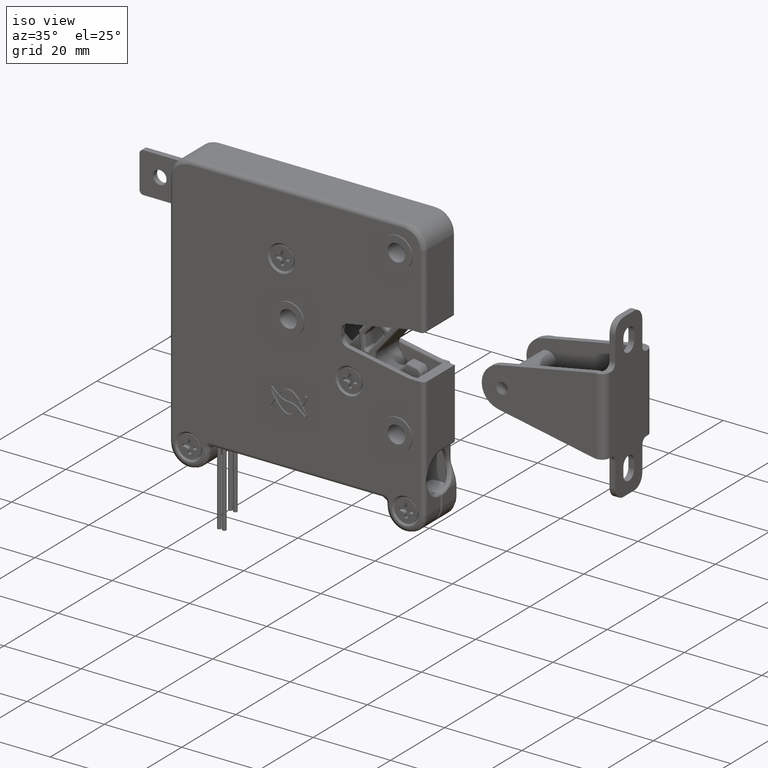
[diagram: clean part render]
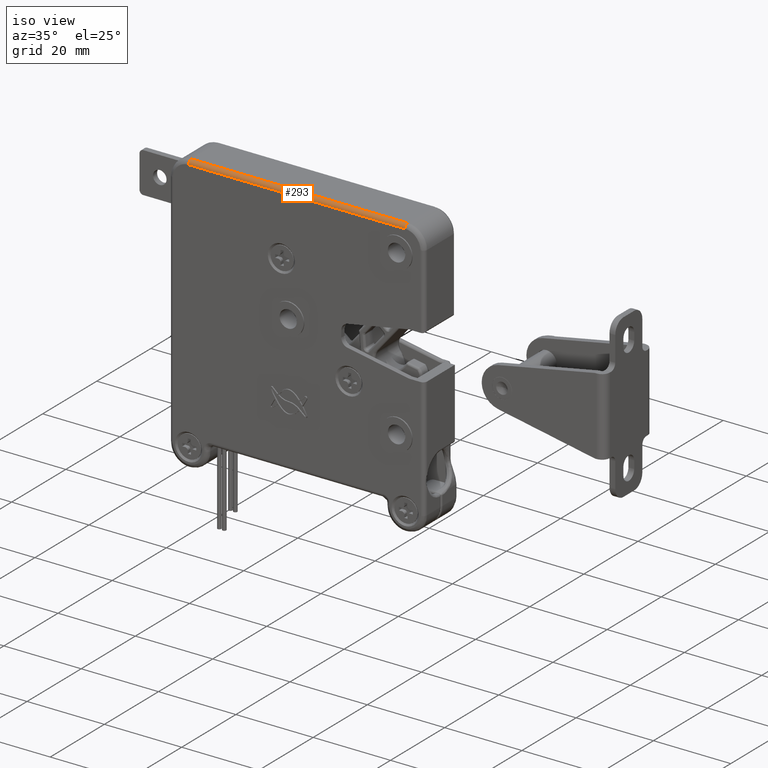
[diagram: same view with one face highlighted and labeled with its STEP entity id]
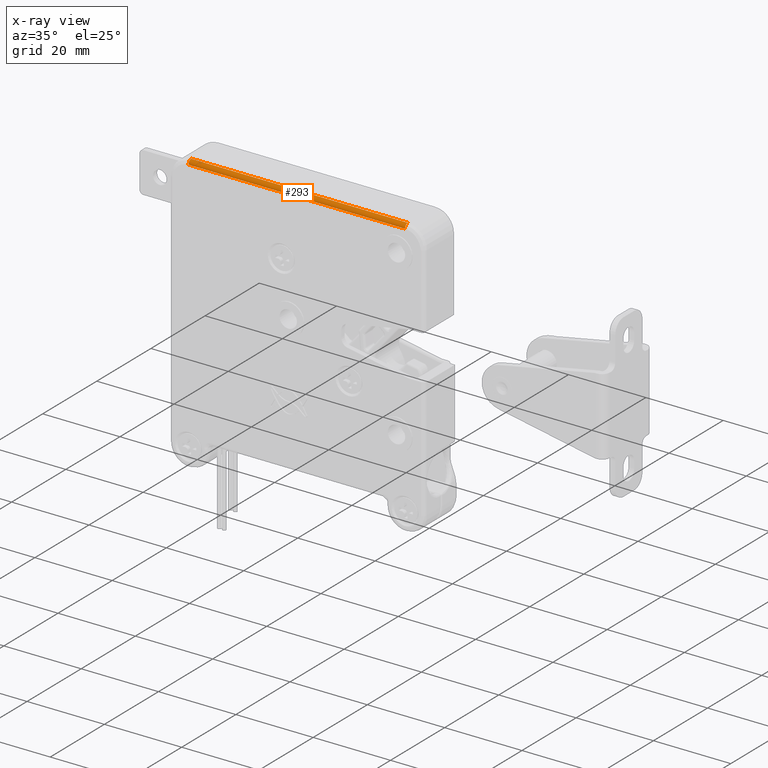
[diagram: x-ray of the same camera — body ghosted, the highlighted face saturated]
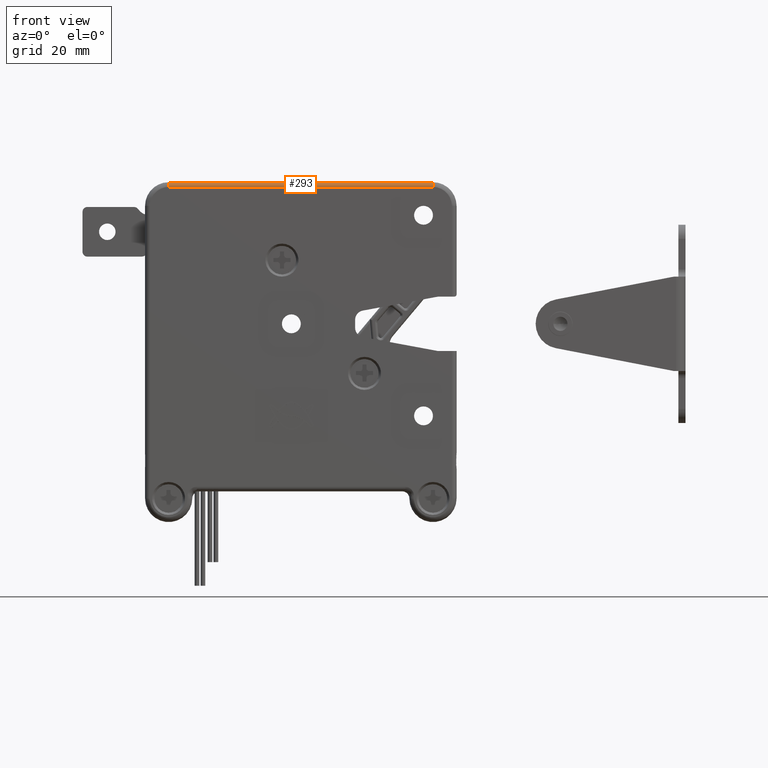
[diagram: same view with one face highlighted and labeled with its STEP entity id]
A machine part, iso view. The second image highlights one B-rep face of the part: STEP entity #293.
The next image is the same camera in x-ray: the body ghosted, the highlighted face saturated — about 0% of this face is hidden behind the body in this view.
A second angle (front view) of the same face is appended — the face is thin or edge-on in the first view.
In plain terms, the highlighted cylindrical surface (edge-blend (fillet) strip) has radius 1 mm, axis along (1, 0, -0).
Its self-contained STEP definition (entity closure, byte-faithful):
#293=ADVANCED_FACE('',(#4097),#4096,.T.);
#4096=CYLINDRICAL_SURFACE('',#26786,1.00000000000E+00);
#4097=FACE_OUTER_BOUND('',#26787,.T.);
#26783=CARTESIAN_POINT('',(1.50000000000E+00,-1.15000000000E+01,2.90000000000E+01));
#26784=DIRECTION('',(1.00000000000E+00,-0.00000000000E+00,-2.04449552526E-15));
#26785=DIRECTION('',(2.04449552526E-15,-0.00000000000E+00,1.00000000000E+00));
#26786=AXIS2_PLACEMENT_3D('',#26783,#26784,#26785);
#26787=EDGE_LOOP('',(#43123,#43124,#43125,#43126));
#43123=ORIENTED_EDGE('',*,*,#54508,.T.);
#43124=ORIENTED_EDGE('',*,*,#54509,.F.);
#43125=ORIENTED_EDGE('',*,*,#54505,.F.);
#43126=ORIENTED_EDGE('',*,*,#54510,.F.);
#54505=EDGE_CURVE('',#64278,#64279,#64280,.T.);
#54508=EDGE_CURVE('',#64298,#64299,#64300,.T.);
#54509=EDGE_CURVE('',#64279,#64299,#64306,.T.);
#54510=EDGE_CURVE('',#64298,#64278,#64312,.T.);
#64278=VERTEX_POINT('',#102054);
#64279=VERTEX_POINT('',#102055);
#64280=CIRCLE('',#102059,1.00000000000E+00);
#64298=VERTEX_POINT('',#102068);
#64299=VERTEX_POINT('',#102069);
#64300=CIRCLE('',#102073,1.00000000000E+00);
#64306=LINE('',#102074,#102075);
#64312=LINE('',#102077,#102078);
#102054=CARTESIAN_POINT('',(-5.95000000000E+01,-1.25000000000E+01,2.90000000000E+01));
#102055=CARTESIAN_POINT('',(-5.95000000000E+01,-1.15000000000E+01,3.00000000000E+01));
#102056=CARTESIAN_POINT('',(-5.95000000000E+01,-1.15000000000E+01,2.90000000000E+01));
#102057=DIRECTION('',(-1.00000000000E+00,0.00000000000E+00,-6.93889390391E-15));
#102058=DIRECTION('',(-6.93889390391E-15,-0.00000000000E+00,1.00000000000E+00));
#102059=AXIS2_PLACEMENT_3D('',#102056,#102057,#102058);
#102068=CARTESIAN_POINT('',(-3.50000000000E+00,-1.25000000000E+01,2.90000000000E+01));
#102069=CARTESIAN_POINT('',(-3.50000000000E+00,-1.15000000000E+01,3.00000000000E+01));
#102070=CARTESIAN_POINT('',(-3.50000000000E+00,-1.15000000000E+01,2.90000000000E+01));
#102071=DIRECTION('',(-1.00000000000E+00,0.00000000000E+00,1.73472347598E-15));
#102072=DIRECTION('',(1.73472347598E-15,-0.00000000000E+00,1.00000000000E+00));
#102073=AXIS2_PLACEMENT_3D('',#102070,#102071,#102072);
#102074=CARTESIAN_POINT('',(-5.95000000000E+01,-1.15000000000E+01,3.00000000000E+01));
#102075=VECTOR('',#102076,5.60000000000E+01);
#102076=DIRECTION('',(1.00000000000E+00,0.00000000000E+00,-2.03012210217E-15));
#102077=CARTESIAN_POINT('',(-3.50000000000E+00,-1.25000000000E+01,2.90000000000E+01));
#102078=VECTOR('',#102079,5.60000000000E+01);
#102079=DIRECTION('',(-1.00000000000E+00,0.00000000000E+00,2.03012210217E-15));